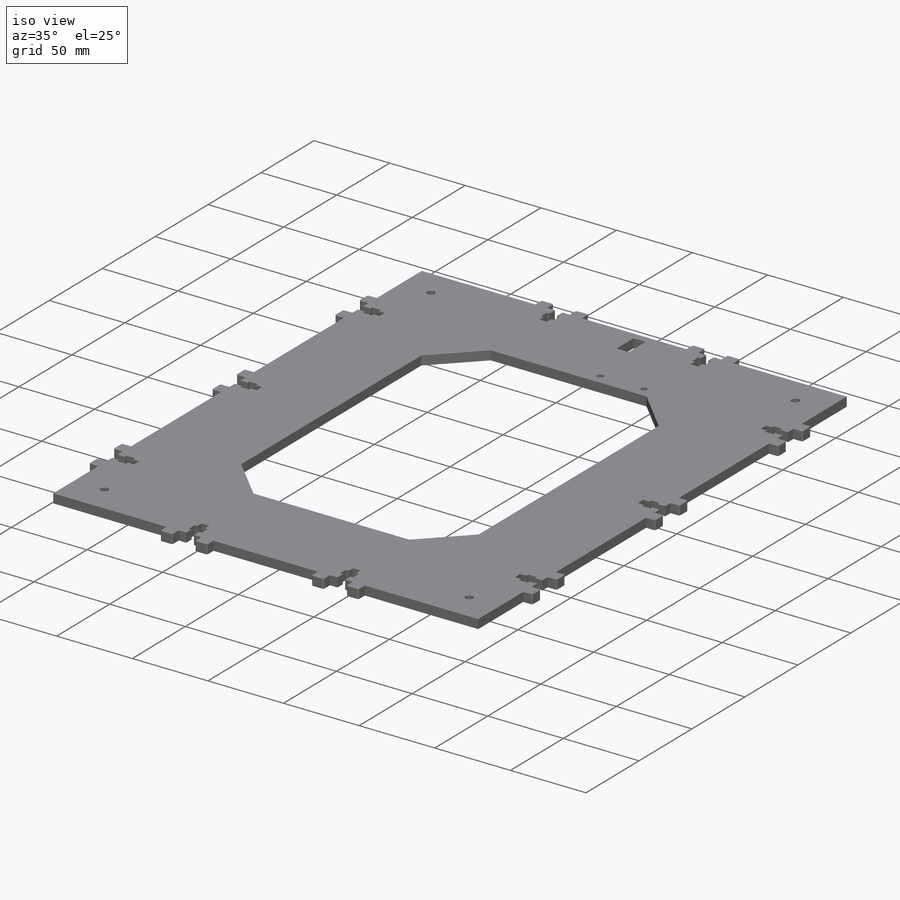
[diagram: iso view]
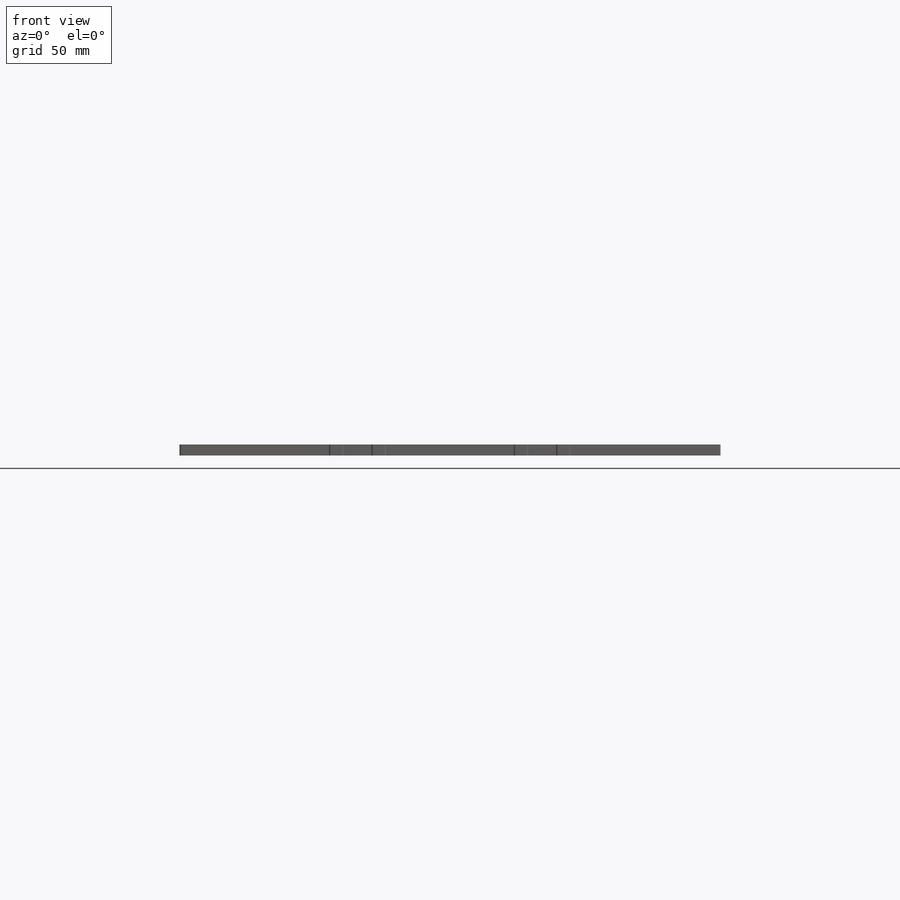
[diagram: front view]
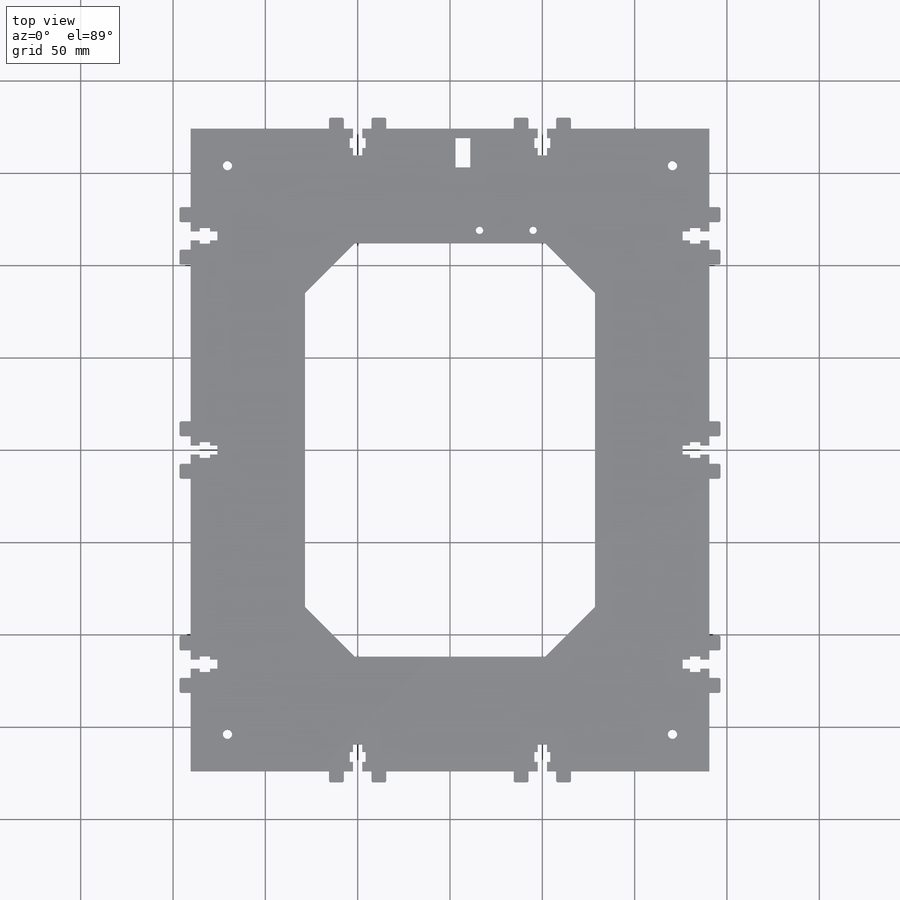
[diagram: top view]
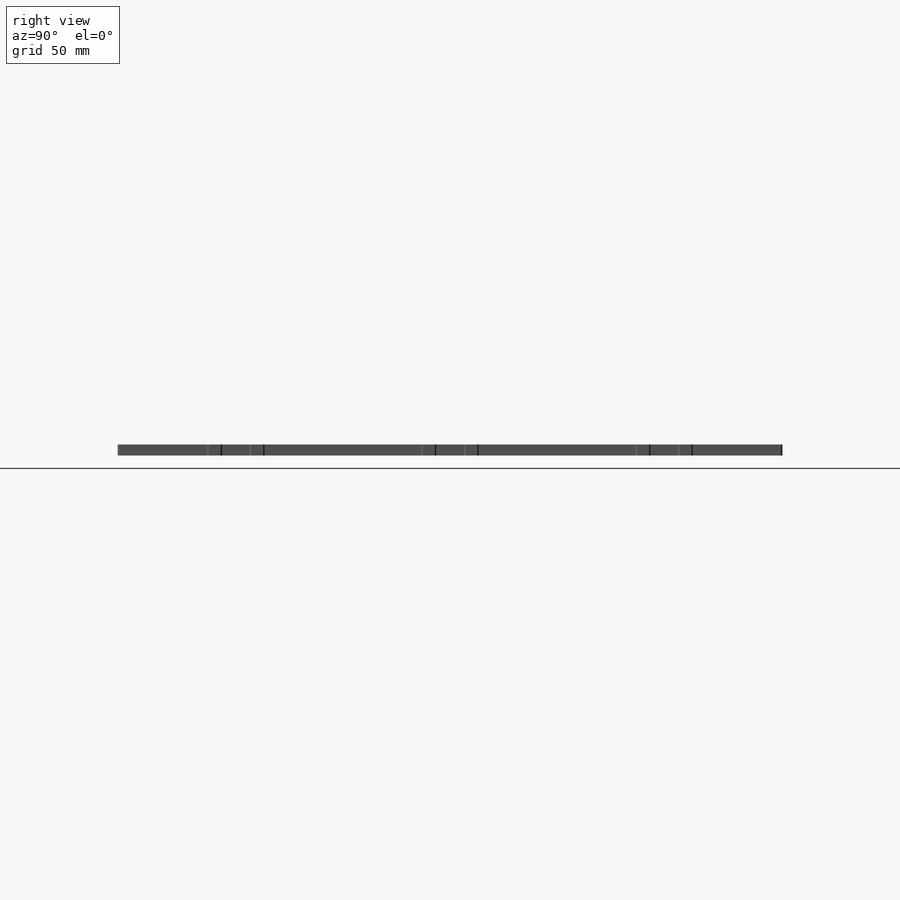
[diagram: right view]
SOLIDWORKS PART (.sldprt)
format: sldprt  version: not decoded by parser v0  size: 599,552 bytes
history: native  units: mm
features: plane x3, sketch x3, extrude x3, cut_extrude x3, mirror x2, material x1, chamfer x1 + 5 further entries (+10 scaffold rows collapsed)
feature tree (31):
  scaffold x10  (default folders/planes/origin — collapsed)
  material  "Matériau <non spécifié>"
  plane  "Plan de face"
  plane  "Plan de dessus"
  plane  "Plan de droite"
  sketch  "Esquisse2"  dims[c1.D7=5.0mm c1.D11=4.0mm c1.D17=5.0mm c1.D1=330.0mm c1.D2=276.0mm c2.D1=276.0mm c2.D2=330.0mm c2.D3=55.2mm c2.D4=65.0mm c2.D5=20.0mm c2.D6=20.0mm c2.D8=55.0mm c2.D9=29.0mm c2.D10=92.0mm c3.D8=20.0mm c3.D9=20.0mm c3.D10=281.0mm c3.D11=348.0mm c3.D16=62.0mm c3.D18=46.0mm]
  extrude  "plaque"  Depth=6mm
  "Esquisse10"
  sketch  "Bloc4-29"  dims[c1.D1=55.0mm c1.D2=50.0mm c2.D1=58.0mm]
  extrude  "Boss.-Extru.8"  Depth=6mm
  cut_extrude  "Enlèv. mat.-Extru.8"  [1 undecoded]
  "Esquisse10<3>"
  chamfer  "Chanfrein1"  Distance=27mm Angle=45deg
  mirror  "Symétrie6"
  "Esquisse13"
  sketch  "Bloc4-35"
  extrude  "Boss.-Extru.10"  Depth=6mm
  cut_extrude  "Enlèv. mat.-Extru.10"  [1 undecoded]
  "Esquisse13<3>"
  mirror  "Symétrie5"
  "Esquisse14"
  cut_extrude  "Enlèv. mat.-Extru.11"  [1 undecoded]
decode coverage: 6 of 12 modeling features carry decoded parameters; 5 rows unclassified (native names shown)
note: 3 parameter values undecoded
summary: no parameter record found for 3 features
note: suppression state not decoded; provenance and decode notes live in map.json
